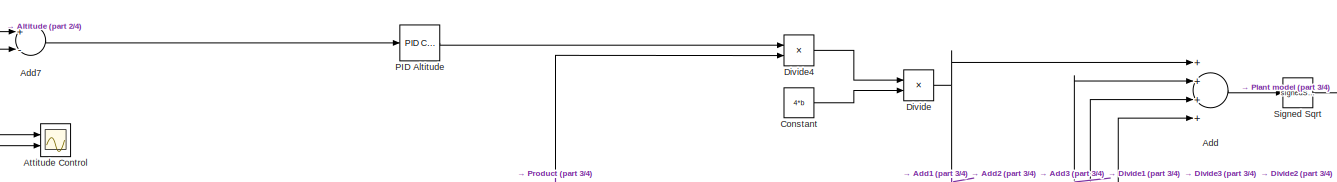
[diagram: root canvas - part 1/4, top center region]
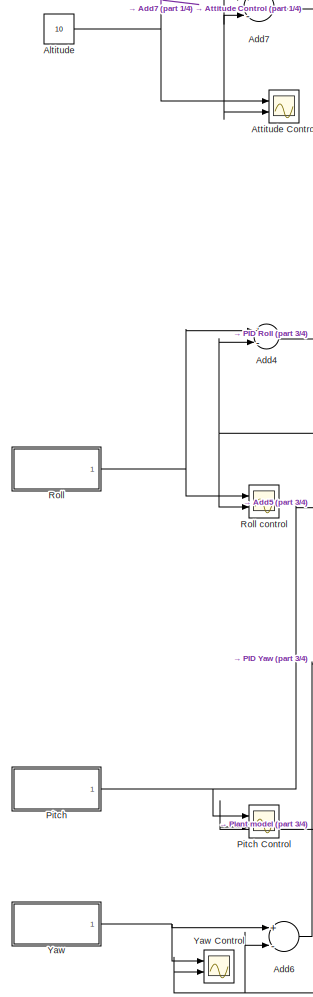
[diagram: root canvas - part 2/4, left side, full height]
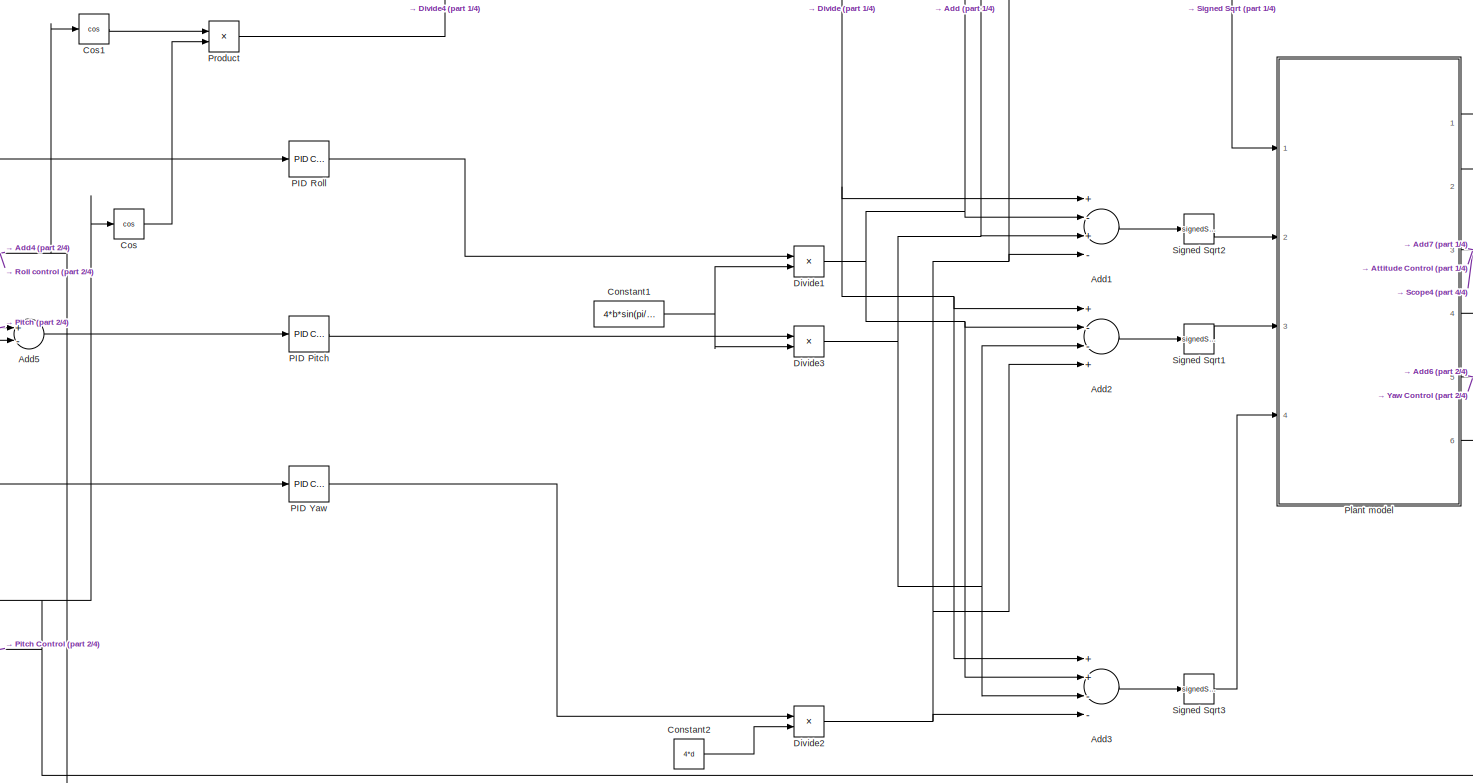
[diagram: root canvas - part 3/4, full width, middle band]
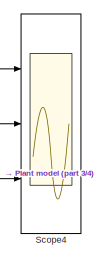
[diagram: root canvas - part 4/4, middle right region]
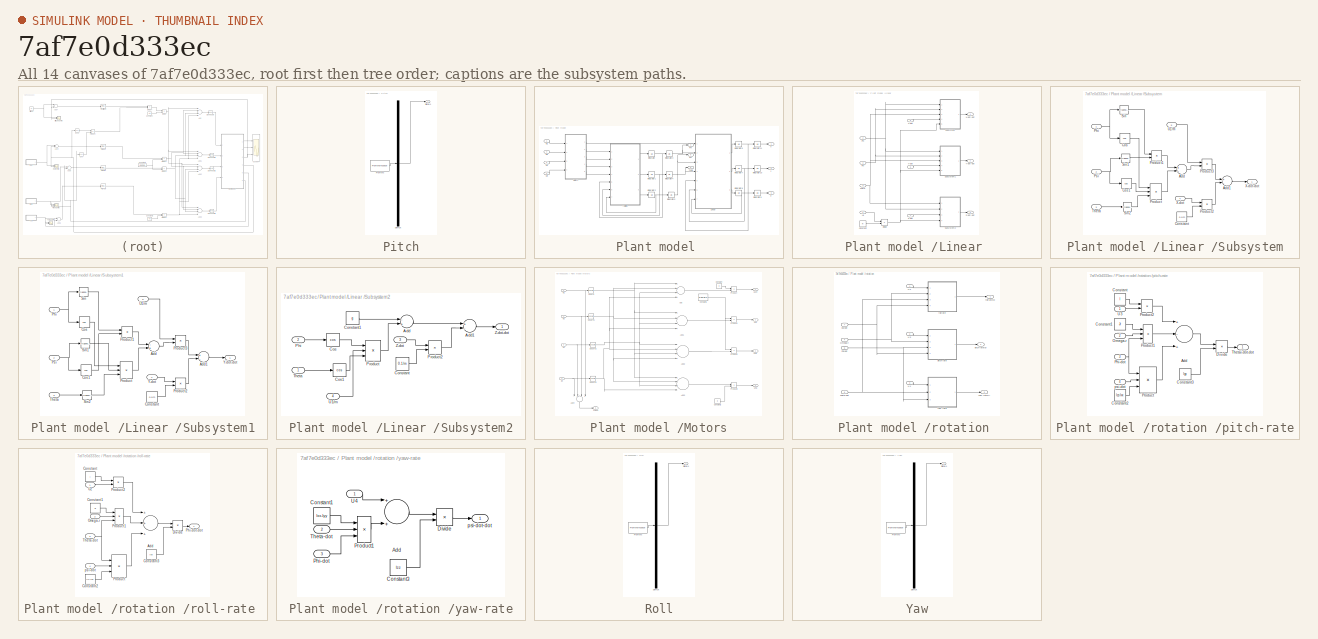
[diagram: thumbnail index - all 14 canvases of the model, root first then tree order]
MODEL slx_7af7e0d333ec
KIND model
CONFIG AbsTol = auto
CONFIG EnableMultiTasking = off
CONFIG FixedStep = auto
CONFIG MaxStep = auto
CONFIG MinStep = auto
CONFIG RelTol = 1e-3
CONFIG SampleTimeConstraint = Unconstrained
CONFIG Solver = VariableStepAuto
CONFIG SolverName = VariableStepAuto
CONFIG StartTime = 0.0
CONFIG StopTime = 200
BLOCK [Reference]  PID Altitude  REF=simulink/Continuous/PID Controller
  Ports = [1, 1]
  SourceBlock = simulink/Continuous/PID Controller
  SourceProductBaseCode = SL
  SourceProductName = Simulink
  SourceType = PID 1dof
BLOCK [Reference]  PID Pitch  REF=simulink/Continuous/PID Controller
  Ports = [1, 1]
  SourceBlock = simulink/Continuous/PID Controller
  SourceProductBaseCode = SL
  SourceProductName = Simulink
  SourceType = PID 1dof
BLOCK [Reference]  PID Roll  REF=simulink/Continuous/PID Controller
  Ports = [1, 1]
  SourceBlock = simulink/Continuous/PID Controller
  SourceProductBaseCode = SL
  SourceProductName = Simulink
  SourceType = PID 1dof
BLOCK [Reference]  PID Yaw  REF=simulink/Continuous/PID Controller
  Ports = [1, 1]
  SourceBlock = simulink/Continuous/PID Controller
  SourceProductBaseCode = SL
  SourceProductName = Simulink
  SourceType = PID 1dof
BLOCK [Sum] Add
  InputSameDT = off
  Inputs = ++++
  OutDataTypeStr = Inherit: Inherit via internal rule
  Ports = [4, 1]
  SaturateOnIntegerOverflow = off
BLOCK [Sum] Add1
  InputSameDT = off
  Inputs = +-+-
  OutDataTypeStr = Inherit: Inherit via internal rule
  Ports = [4, 1]
  SaturateOnIntegerOverflow = off
BLOCK [Sum] Add2
  InputSameDT = off
  Inputs = +--+
  OutDataTypeStr = Inherit: Inherit via internal rule
  Ports = [4, 1]
  SaturateOnIntegerOverflow = off
BLOCK [Sum] Add3
  InputSameDT = off
  Inputs = ++--
  OutDataTypeStr = Inherit: Inherit via internal rule
  Ports = [4, 1]
  SaturateOnIntegerOverflow = off
BLOCK [Sum] Add4
  InputSameDT = off
  Inputs = +-
  OutDataTypeStr = Inherit: Inherit via internal rule
  Ports = [2, 1]
  SaturateOnIntegerOverflow = off
BLOCK [Sum] Add5
  InputSameDT = off
  Inputs = +-
  OutDataTypeStr = Inherit: Inherit via internal rule
  Ports = [2, 1]
  SaturateOnIntegerOverflow = off
BLOCK [Sum] Add6
  InputSameDT = off
  Inputs = +-
  OutDataTypeStr = Inherit: Inherit via internal rule
  Ports = [2, 1]
  SaturateOnIntegerOverflow = off
BLOCK [Sum] Add7
  InputSameDT = off
  Inputs = +-
  OutDataTypeStr = Inherit: Inherit via internal rule
  Ports = [2, 1]
  SaturateOnIntegerOverflow = off
BLOCK [Constant] Altitude 
  Value = 10
BLOCK [Scope] Attitude Control 
  Floating = off
  NumInputPorts = 2
  Ports = [2]
  ScopeSpecificationString = Simulink.scopes.TimeScopeBlockCfg('CurrentConfiguration', extmgr.ConfigurationSet(extmgr.Configuration('Core','General UI',true,'FigureColor',[1 1 1]),extmgr.Configuration('Core','Source UI',true),extmgr.Configuration('Sources','WiredSimulink',true,'DataLoggingVariableName','ScopeData6'),extmgr.Configuration('Visuals','Time Domain',true,'SerializedDisplays',{struct('MinYLimReal','-1.43023','MaxYLi...<+2482ch>
BLOCK [Constant] Constant
  Value = 4*b
BLOCK [Constant] Constant1
  Value = 4*b*sin(pi/4)*l
BLOCK [Constant] Constant2
  Value = 4*d
BLOCK [Trigonometry] Cos
  Operator = cos
  Ports = [1, 1]
BLOCK [Trigonometry] Cos1
  Operator = cos
  Ports = [1, 1]
BLOCK [Product] Divide
  InputSameDT = off
  Inputs = */
  OutDataTypeStr = Inherit: Inherit via internal rule
  Ports = [2, 1]
  RndMeth = Floor
  SaturateOnIntegerOverflow = off
BLOCK [Product] Divide1
  InputSameDT = off
  Inputs = */
  OutDataTypeStr = Inherit: Inherit via internal rule
  Ports = [2, 1]
  RndMeth = Floor
  SaturateOnIntegerOverflow = off
BLOCK [Product] Divide2
  InputSameDT = off
  Inputs = */
  OutDataTypeStr = Inherit: Inherit via internal rule
  Ports = [2, 1]
  RndMeth = Floor
  SaturateOnIntegerOverflow = off
BLOCK [Product] Divide3
  InputSameDT = off
  Inputs = */
  OutDataTypeStr = Inherit: Inherit via internal rule
  Ports = [2, 1]
  RndMeth = Floor
  SaturateOnIntegerOverflow = off
BLOCK [Product] Divide4
  InputSameDT = off
  Inputs = */
  OutDataTypeStr = Inherit: Inherit via internal rule
  Ports = [2, 1]
  RndMeth = Floor
  SaturateOnIntegerOverflow = off
BLOCK [SubSystem] Pitch
  ClipboardFcn = sigbuilder_block('clipboard');
  CloseFcn = sigbuilder_block('close');
  ContinueFcn = sigbuilder_block('continue');
  CopyFcn = sigbuilder_block('copy');
  DeleteFcn = sigbuilder_block('delete');
  LoadFcn = sigbuilder_block('load');
  MaskHideContents = on
  ModelCloseFcn = sigbuilder_block('modelClose');
  NameChangeFcn = sigbuilder_block('namechange');
  OpenFcn = sigbuilder_block('open',[437.6 199.2 550.4 400 ]);
  PauseFcn = sigbuilder_block('pause');
  Ports = [0, 1]
  PreSaveFcn = sigbuilder_block('preSave');
  RequestExecContextInheritance = off
  StartFcn = sigbuilder_block('start');
  StopFcn = sigbuilder_block('stop');
  Tag = STV Subsys
BLOCK [Scope] Pitch Control
  Floating = off
  NumInputPorts = 2
  Ports = [2]
  ScopeSpecificationString = Simulink.scopes.TimeScopeBlockCfg('CurrentConfiguration', extmgr.ConfigurationSet(extmgr.Configuration('Core','General UI',true,'FigureColor',[1 1 1]),extmgr.Configuration('Core','Source UI',true),extmgr.Configuration('Sources','WiredSimulink',true,'DataLoggingVariableName','ScopeData2'),extmgr.Configuration('Visuals','Time Domain',true,'SerializedDisplays',{struct('MinYLimReal','-0.025','MaxYLimR...<+2359ch>
BLOCK [Demux] Pitch/Demux
  Outputs = 1
  Ports = [1, 1]
  Tag = STV Demux
BLOCK [FromWorkspace] Pitch/FromWs
  SampleTime = 0
  Tag = STV FromWs
  VariableName = tuvar
  ZeroCross = on
BLOCK [Outport] Pitch/Signal 1
  IconDisplay = Port number
  Tag = STV Outport
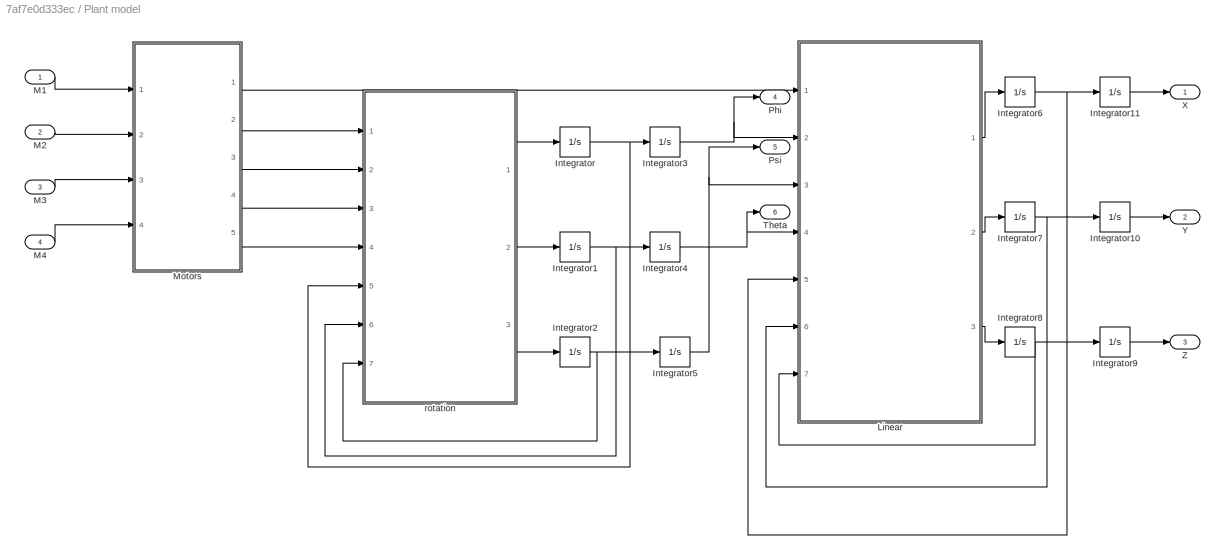
BLOCK [SubSystem] Plant model 
  Ports = [4, 6]
  RequestExecContextInheritance = off
BLOCK [Integrator] Plant model /Integrator
  Ports = [1, 1]
BLOCK [Integrator] Plant model /Integrator1
  Ports = [1, 1]
BLOCK [Integrator] Plant model /Integrator10
  LimitOutput = on
  Ports = [1, 1]
BLOCK [Integrator] Plant model /Integrator11
  LimitOutput = on
  Ports = [1, 1]
BLOCK [Integrator] Plant model /Integrator2
  Ports = [1, 1]
BLOCK [Integrator] Plant model /Integrator3
  Ports = [1, 1]
  WrapState = on
BLOCK [Integrator] Plant model /Integrator4
  Ports = [1, 1]
  WrapState = on
BLOCK [Integrator] Plant model /Integrator5
  Ports = [1, 1]
  WrapState = on
BLOCK [Integrator] Plant model /Integrator6
  Ports = [1, 1]
BLOCK [Integrator] Plant model /Integrator7
  Ports = [1, 1]
BLOCK [Integrator] Plant model /Integrator8
  Ports = [1, 1]
BLOCK [Integrator] Plant model /Integrator9
  LimitOutput = on
  Ports = [1, 1]
BLOCK [SubSystem] Plant model /Linear 
  Ports = [7, 3]
  RequestExecContextInheritance = off
BLOCK [Constant] Plant model /Linear /Constant
  Value = m
BLOCK [Product] Plant model /Linear /Divide
  InputSameDT = off
  Inputs = */
  OutDataTypeStr = Inherit: Inherit via internal rule
  Ports = [2, 1]
  RndMeth = Floor
  SaturateOnIntegerOverflow = off
BLOCK [Inport] Plant model /Linear /Phi
  IconDisplay = Port number
  Port = 2
BLOCK [Inport] Plant model /Linear /Psi 
  IconDisplay = Port number
  Port = 3
BLOCK [SubSystem] Plant model /Linear /Subsystem
  Ports = [5, 1]
  RequestExecContextInheritance = off
BLOCK [Sum] Plant model /Linear /Subsystem/Add
  InputSameDT = off
  Inputs = +-
  OutDataTypeStr = Inherit: Inherit via internal rule
  Ports = [2, 1]
  SaturateOnIntegerOverflow = off
BLOCK [Sum] Plant model /Linear /Subsystem/Add1
  InputSameDT = off
  Inputs = +-
  OutDataTypeStr = Inherit: Inherit via internal rule
  Ports = [2, 1]
  SaturateOnIntegerOverflow = off
BLOCK [Constant] Plant model /Linear /Subsystem/Constant
  Value = 0.1/m
BLOCK [Trigonometry] Plant model /Linear /Subsystem/Cos
  Operator = cos
  Ports = [1, 1]
BLOCK [Trigonometry] Plant model /Linear /Subsystem/Cos1
  Operator = cos
  Ports = [1, 1]
BLOCK [Inport] Plant model /Linear /Subsystem/Phi
  IconDisplay = Port number
BLOCK [Product] Plant model /Linear /Subsystem/Product
  InputSameDT = off
  Inputs = 3
  OutDataTypeStr = Inherit: Inherit via internal rule
  Ports = [3, 1]
  RndMeth = Floor
  SaturateOnIntegerOverflow = off
BLOCK [Product] Plant model /Linear /Subsystem/Product1
  InputSameDT = off
  OutDataTypeStr = Inherit: Inherit via internal rule
  Ports = [2, 1]
  RndMeth = Floor
  SaturateOnIntegerOverflow = off
BLOCK [Product] Plant model /Linear /Subsystem/Product2
  InputSameDT = off
  OutDataTypeStr = Inherit: Inherit via internal rule
  Ports = [2, 1]
  RndMeth = Floor
  SaturateOnIntegerOverflow = off
BLOCK [Product] Plant model /Linear /Subsystem/Product3
  InputSameDT = off
  OutDataTypeStr = Inherit: Inherit via internal rule
  Ports = [2, 1]
  RndMeth = Floor
  SaturateOnIntegerOverflow = off
BLOCK [Inport] Plant model /Linear /Subsystem/Psi 
  IconDisplay = Port number
  Port = 2
BLOCK [Trigonometry] Plant model /Linear /Subsystem/Sin
  Ports = [1, 1]
BLOCK [Trigonometry] Plant model /Linear /Subsystem/Sin1
  Ports = [1, 1]
BLOCK [Trigonometry] Plant model /Linear /Subsystem/Sin2
  Ports = [1, 1]
BLOCK [Inport] Plant model /Linear /Subsystem/Theta
  IconDisplay = Port number
  Port = 3
BLOCK [Inport] Plant model /Linear /Subsystem/U1//m
  IconDisplay = Port number
  Port = 5
BLOCK [Inport] Plant model /Linear /Subsystem/X-dot 
  IconDisplay = Port number
  Port = 4
BLOCK [Outport] Plant model /Linear /Subsystem/X-dot-dot
  IconDisplay = Port number
BLOCK [SubSystem] Plant model /Linear /Subsystem1
  Ports = [5, 1]
  RequestExecContextInheritance = off
BLOCK [Sum] Plant model /Linear /Subsystem1/Add
  InputSameDT = off
  Inputs = -+
  OutDataTypeStr = Inherit: Inherit via internal rule
  Ports = [2, 1]
  SaturateOnIntegerOverflow = off
BLOCK [Sum] Plant model /Linear /Subsystem1/Add1
  InputSameDT = off
  Inputs = +-
  OutDataTypeStr = Inherit: Inherit via internal rule
  Ports = [2, 1]
  SaturateOnIntegerOverflow = off
BLOCK [Constant] Plant model /Linear /Subsystem1/Constant
  Value = 0.1/m
BLOCK [Trigonometry] Plant model /Linear /Subsystem1/Cos
  Operator = cos
  Ports = [1, 1]
BLOCK [Trigonometry] Plant model /Linear /Subsystem1/Cos1
  Operator = cos
  Ports = [1, 1]
BLOCK [Inport] Plant model /Linear /Subsystem1/Phi
  IconDisplay = Port number
BLOCK [Product] Plant model /Linear /Subsystem1/Product
  InputSameDT = off
  Inputs = 3
  OutDataTypeStr = Inherit: Inherit via internal rule
  Ports = [3, 1]
  RndMeth = Floor
  SaturateOnIntegerOverflow = off
BLOCK [Product] Plant model /Linear /Subsystem1/Product1
  InputSameDT = off
  OutDataTypeStr = Inherit: Inherit via internal rule
  Ports = [2, 1]
  RndMeth = Floor
  SaturateOnIntegerOverflow = off
BLOCK [Product] Plant model /Linear /Subsystem1/Product2
  InputSameDT = off
  OutDataTypeStr = Inherit: Inherit via internal rule
  Ports = [2, 1]
  RndMeth = Floor
  SaturateOnIntegerOverflow = off
BLOCK [Product] Plant model /Linear /Subsystem1/Product3
  InputSameDT = off
  OutDataTypeStr = Inherit: Inherit via internal rule
  Ports = [2, 1]
  RndMeth = Floor
  SaturateOnIntegerOverflow = off
BLOCK [Inport] Plant model /Linear /Subsystem1/Psi 
  IconDisplay = Port number
  Port = 2
BLOCK [Trigonometry] Plant model /Linear /Subsystem1/Sin
  Ports = [1, 1]
BLOCK [Trigonometry] Plant model /Linear /Subsystem1/Sin1
  Ports = [1, 1]
BLOCK [Trigonometry] Plant model /Linear /Subsystem1/Sin2
  Ports = [1, 1]
BLOCK [Inport] Plant model /Linear /Subsystem1/Theta
  IconDisplay = Port number
  Port = 3
BLOCK [Inport] Plant model /Linear /Subsystem1/U1//m
  IconDisplay = Port number
  Port = 5
BLOCK [Inport] Plant model /Linear /Subsystem1/Y-dot 
  IconDisplay = Port number
  Port = 4
BLOCK [Outport] Plant model /Linear /Subsystem1/Y-dot-dot
  IconDisplay = Port number
BLOCK [SubSystem] Plant model /Linear /Subsystem2
  Ports = [4, 1]
  RequestExecContextInheritance = off
BLOCK [Sum] Plant model /Linear /Subsystem2/Add
  InputSameDT = off
  Inputs = -+
  OutDataTypeStr = Inherit: Inherit via internal rule
  Ports = [2, 1]
  SaturateOnIntegerOverflow = off
BLOCK [Sum] Plant model /Linear /Subsystem2/Add1
  InputSameDT = off
  Inputs = +-
  OutDataTypeStr = Inherit: Inherit via internal rule
  Ports = [2, 1]
  SaturateOnIntegerOverflow = off
BLOCK [Constant] Plant model /Linear /Subsystem2/Constant
  Value = 0.1/m
BLOCK [Constant] Plant model /Linear /Subsystem2/Constant1
  Value = g
BLOCK [Trigonometry] Plant model /Linear /Subsystem2/Cos
  Operator = cos
  Ports = [1, 1]
BLOCK [Trigonometry] Plant model /Linear /Subsystem2/Cos1
  Operator = cos
  Ports = [1, 1]
BLOCK [Inport] Plant model /Linear /Subsystem2/Phi
  IconDisplay = Port number
  Port = 2
BLOCK [Product] Plant model /Linear /Subsystem2/Product
  InputSameDT = off
  Inputs = 3
  OutDataTypeStr = Inherit: Inherit via internal rule
  Ports = [3, 1]
  RndMeth = Floor
  SaturateOnIntegerOverflow = off
BLOCK [Product] Plant model /Linear /Subsystem2/Product2
  InputSameDT = off
  OutDataTypeStr = Inherit: Inherit via internal rule
  Ports = [2, 1]
  RndMeth = Floor
  SaturateOnIntegerOverflow = off
BLOCK [Inport] Plant model /Linear /Subsystem2/Theta
  IconDisplay = Port number
BLOCK [Inport] Plant model /Linear /Subsystem2/U1//m
  IconDisplay = Port number
  Port = 4
BLOCK [Inport] Plant model /Linear /Subsystem2/Z-dot 
  IconDisplay = Port number
  Port = 3
BLOCK [Outport] Plant model /Linear /Subsystem2/Z-dot-dot
  IconDisplay = Port number
BLOCK [Inport] Plant model /Linear /Theta
  IconDisplay = Port number
  Port = 4
BLOCK [Inport] Plant model /Linear /U1
  IconDisplay = Port number
BLOCK [Inport] Plant model /Linear /X-dot 
  IconDisplay = Port number
  Port = 5
BLOCK [Outport] Plant model /Linear /X-dot-dot
  IconDisplay = Port number
BLOCK [Inport] Plant model /Linear /Y-dot
  IconDisplay = Port number
  Port = 6
BLOCK [Outport] Plant model /Linear /Y-dot-dot
  IconDisplay = Port number
  Port = 2
BLOCK [Inport] Plant model /Linear /Z-dot 
  IconDisplay = Port number
  Port = 7
BLOCK [Outport] Plant model /Linear /Z-dot-dot
  IconDisplay = Port number
  Port = 3
BLOCK [Inport] Plant model /M1
  IconDisplay = Port number
BLOCK [Inport] Plant model /M2
  IconDisplay = Port number
  Port = 2
BLOCK [Inport] Plant model /M3
  IconDisplay = Port number
  Port = 3
BLOCK [Inport] Plant model /M4
  IconDisplay = Port number
  Port = 4
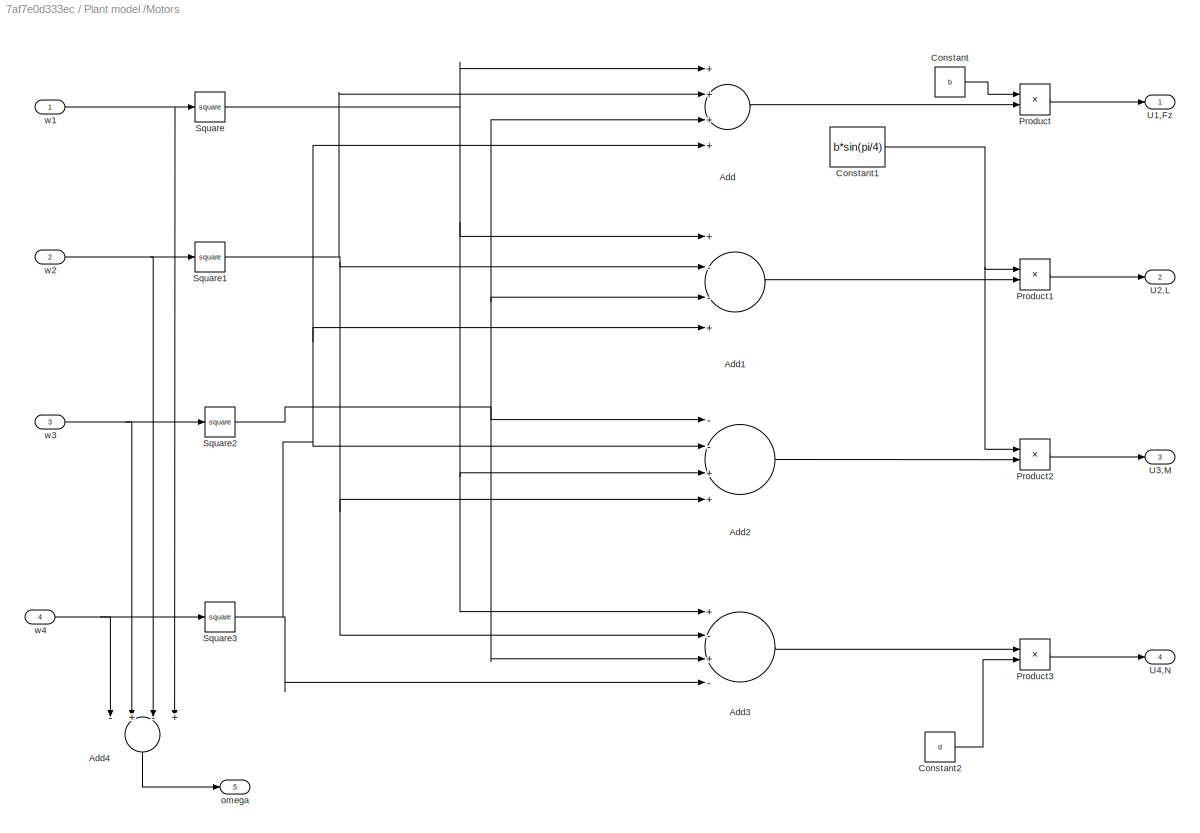
BLOCK [SubSystem] Plant model /Motors
  Ports = [4, 5]
  RequestExecContextInheritance = off
BLOCK [Sum] Plant model /Motors/Add
  InputSameDT = off
  Inputs = ++++
  OutDataTypeStr = Inherit: Inherit via internal rule
  Ports = [4, 1]
  SaturateOnIntegerOverflow = off
BLOCK [Sum] Plant model /Motors/Add1
  InputSameDT = off
  Inputs = +--+
  OutDataTypeStr = Inherit: Inherit via internal rule
  Ports = [4, 1]
  SaturateOnIntegerOverflow = off
BLOCK [Sum] Plant model /Motors/Add2
  InputSameDT = off
  Inputs = --++
  OutDataTypeStr = Inherit: Inherit via internal rule
  Ports = [4, 1]
  SaturateOnIntegerOverflow = off
BLOCK [Sum] Plant model /Motors/Add3
  InputSameDT = off
  Inputs = +-+-
  OutDataTypeStr = Inherit: Inherit via internal rule
  Ports = [4, 1]
  SaturateOnIntegerOverflow = off
BLOCK [Sum] Plant model /Motors/Add4
  InputSameDT = off
  Inputs = -+-+
  OutDataTypeStr = Inherit: Inherit via internal rule
  Ports = [4, 1]
  SaturateOnIntegerOverflow = off
BLOCK [Constant] Plant model /Motors/Constant
  Value = b
BLOCK [Constant] Plant model /Motors/Constant1
  Value = b*sin(pi/4)
BLOCK [Constant] Plant model /Motors/Constant2
  Value = d
BLOCK [Product] Plant model /Motors/Product
  InputSameDT = off
  OutDataTypeStr = Inherit: Inherit via internal rule
  Ports = [2, 1]
  RndMeth = Floor
  SaturateOnIntegerOverflow = off
BLOCK [Product] Plant model /Motors/Product1
  InputSameDT = off
  OutDataTypeStr = Inherit: Inherit via internal rule
  Ports = [2, 1]
  RndMeth = Floor
  SaturateOnIntegerOverflow = off
BLOCK [Product] Plant model /Motors/Product2
  InputSameDT = off
  OutDataTypeStr = Inherit: Inherit via internal rule
  Ports = [2, 1]
  RndMeth = Floor
  SaturateOnIntegerOverflow = off
BLOCK [Product] Plant model /Motors/Product3
  InputSameDT = off
  OutDataTypeStr = Inherit: Inherit via internal rule
  Ports = [2, 1]
  RndMeth = Floor
  SaturateOnIntegerOverflow = off
BLOCK [Math] Plant model /Motors/Square
  Operator = square
  Ports = [1, 1]
  SignedPower = off
BLOCK [Math] Plant model /Motors/Square1
  Operator = square
  Ports = [1, 1]
  SignedPower = off
BLOCK [Math] Plant model /Motors/Square2
  Operator = square
  Ports = [1, 1]
  SignedPower = off
BLOCK [Math] Plant model /Motors/Square3
  Operator = square
  Ports = [1, 1]
  SignedPower = off
BLOCK [Outport] Plant model /Motors/U1,Fz 
  IconDisplay = Port number
BLOCK [Outport] Plant model /Motors/U2,L
  IconDisplay = Port number
  Port = 2
BLOCK [Outport] Plant model /Motors/U3,M 
  IconDisplay = Port number
  Port = 3
BLOCK [Outport] Plant model /Motors/U4,N
  IconDisplay = Port number
  Port = 4
BLOCK [Outport] Plant model /Motors/omega 
  IconDisplay = Port number
  Port = 5
BLOCK [Inport] Plant model /Motors/w1
  IconDisplay = Port number
BLOCK [Inport] Plant model /Motors/w2
  IconDisplay = Port number
  Port = 2
BLOCK [Inport] Plant model /Motors/w3
  IconDisplay = Port number
  Port = 3
BLOCK [Inport] Plant model /Motors/w4
  IconDisplay = Port number
  Port = 4
BLOCK [Outport] Plant model /Phi
  IconDisplay = Port number
  Port = 4
BLOCK [Outport] Plant model /Psi 
  IconDisplay = Port number
  Port = 5
BLOCK [Outport] Plant model /Theta
  IconDisplay = Port number
  Port = 6
BLOCK [Outport] Plant model /X
  IconDisplay = Port number
BLOCK [Outport] Plant model /Y
  IconDisplay = Port number
  Port = 2
BLOCK [Outport] Plant model /Z
  IconDisplay = Port number
  Port = 3
BLOCK [SubSystem] Plant model /rotation 
  Ports = [7, 3]
  RequestExecContextInheritance = off
BLOCK [Inport] Plant model /rotation /Omega-r 
  IconDisplay = Port number
  Port = 4
BLOCK [Inport] Plant model /rotation /Phi-dot 
  IconDisplay = Port number
  Port = 5
BLOCK [Inport] Plant model /rotation /Theta-dot 
  IconDisplay = Port number
  Port = 6
BLOCK [Inport] Plant model /rotation /U2
  IconDisplay = Port number
BLOCK [Inport] Plant model /rotation /U3
  IconDisplay = Port number
  Port = 2
BLOCK [Inport] Plant model /rotation /U4
  IconDisplay = Port number
  Port = 3
BLOCK [SubSystem] Plant model /rotation /pitch-rate
  Ports = [4, 1]
  RequestExecContextInheritance = off
BLOCK [Outport] Plant model /rotation /pitch-rate(q)
  IconDisplay = Port number
  Port = 2
BLOCK [Sum] Plant model /rotation /pitch-rate/Add
  InputSameDT = off
  Inputs = +-+
  OutDataTypeStr = Inherit: Inherit via internal rule
  Ports = [3, 1]
  SaturateOnIntegerOverflow = off
BLOCK [Constant] Plant model /rotation /pitch-rate/Constant
  Value = l
BLOCK [Constant] Plant model /rotation /pitch-rate/Constant1
  Value = Jr
BLOCK [Constant] Plant model /rotation /pitch-rate/Constant2
  Value = Izz-Ixx
BLOCK [Constant] Plant model /rotation /pitch-rate/Constant3
  Value = Iyy
BLOCK [Product] Plant model /rotation /pitch-rate/Divide
  InputSameDT = off
  Inputs = */
  OutDataTypeStr = Inherit: Inherit via internal rule
  Ports = [2, 1]
  RndMeth = Floor
  SaturateOnIntegerOverflow = off
BLOCK [Inport] Plant model /rotation /pitch-rate/Omega-r 
  IconDisplay = Port number
  Port = 2
BLOCK [Inport] Plant model /rotation /pitch-rate/Phi-dot 
  IconDisplay = Port number
  Port = 3
BLOCK [Product] Plant model /rotation /pitch-rate/Product
  InputSameDT = off
  Inputs = 3
  OutDataTypeStr = Inherit: Inherit via internal rule
  Ports = [3, 1]
  RndMeth = Floor
  SaturateOnIntegerOverflow = off
BLOCK [Product] Plant model /rotation /pitch-rate/Product1
  InputSameDT = off
  Inputs = 3
  OutDataTypeStr = Inherit: Inherit via internal rule
  Ports = [3, 1]
  RndMeth = Floor
  SaturateOnIntegerOverflow = off
BLOCK [Product] Plant model /rotation /pitch-rate/Product2
  InputSameDT = off
  OutDataTypeStr = Inherit: Inherit via internal rule
  Ports = [2, 1]
  RndMeth = Floor
  SaturateOnIntegerOverflow = off
BLOCK [Outport] Plant model /rotation /pitch-rate/Thetai-dot-dot
  IconDisplay = Port number
BLOCK [Inport] Plant model /rotation /pitch-rate/U3
  IconDisplay = Port number
BLOCK [Inport] Plant model /rotation /pitch-rate/psi-dot 
  IconDisplay = Port number
  Port = 4
BLOCK [Inport] Plant model /rotation /psi-dot 
  IconDisplay = Port number
  Port = 7
BLOCK [SubSystem] Plant model /rotation /roll-rate 
  Ports = [4, 1]
  RequestExecContextInheritance = off
BLOCK [Sum] Plant model /rotation /roll-rate /Add
  InputSameDT = off
  Inputs = +++
  OutDataTypeStr = Inherit: Inherit via internal rule
  Ports = [3, 1]
  SaturateOnIntegerOverflow = off
BLOCK [Constant] Plant model /rotation /roll-rate /Constant
  Value = l
BLOCK [Constant] Plant model /rotation /roll-rate /Constant1
  Value = Jr
BLOCK [Constant] Plant model /rotation /roll-rate /Constant2
  Value = Iyy-Izz
BLOCK [Constant] Plant model /rotation /roll-rate /Constant3
  Value = Ixx
BLOCK [Product] Plant model /rotation /roll-rate /Divide
  InputSameDT = off
  Inputs = */
  OutDataTypeStr = Inherit: Inherit via internal rule
  Ports = [2, 1]
  RndMeth = Floor
  SaturateOnIntegerOverflow = off
BLOCK [Inport] Plant model /rotation /roll-rate /Omega-r 
  IconDisplay = Port number
  Port = 2
BLOCK [Outport] Plant model /rotation /roll-rate /Phi-dot-dot
  IconDisplay = Port number
BLOCK [Product] Plant model /rotation /roll-rate /Product
  InputSameDT = off
  Inputs = 3
  OutDataTypeStr = Inherit: Inherit via internal rule
  Ports = [3, 1]
  RndMeth = Floor
  SaturateOnIntegerOverflow = off
BLOCK [Product] Plant model /rotation /roll-rate /Product1
  InputSameDT = off
  Inputs = 3
  OutDataTypeStr = Inherit: Inherit via internal rule
  Ports = [3, 1]
  RndMeth = Floor
  SaturateOnIntegerOverflow = off
BLOCK [Product] Plant model /rotation /roll-rate /Product2
  InputSameDT = off
  OutDataTypeStr = Inherit: Inherit via internal rule
  Ports = [2, 1]
  RndMeth = Floor
  SaturateOnIntegerOverflow = off
BLOCK [Inport] Plant model /rotation /roll-rate /Theta-dot 
  IconDisplay = Port number
  Port = 3
BLOCK [Inport] Plant model /rotation /roll-rate /U2
  IconDisplay = Port number
BLOCK [Inport] Plant model /rotation /roll-rate /psi-dot 
  IconDisplay = Port number
  Port = 4
BLOCK [Outport] Plant model /rotation /roll-rate(p)
  IconDisplay = Port number
BLOCK [SubSystem] Plant model /rotation /yaw-rate
  Ports = [3, 1]
  RequestExecContextInheritance = off
BLOCK [Outport] Plant model /rotation /yaw-rate(r)
  IconDisplay = Port number
  Port = 3
BLOCK [Sum] Plant model /rotation /yaw-rate/Add
  InputSameDT = off
  OutDataTypeStr = Inherit: Inherit via internal rule
  Ports = [2, 1]
  SaturateOnIntegerOverflow = off
BLOCK [Constant] Plant model /rotation /yaw-rate/Constant1
  Value = Ixx-Iyy
BLOCK [Constant] Plant model /rotation /yaw-rate/Constant3
  Value = Izz
BLOCK [Product] Plant model /rotation /yaw-rate/Divide
  InputSameDT = off
  Inputs = */
  OutDataTypeStr = Inherit: Inherit via internal rule
  Ports = [2, 1]
  RndMeth = Floor
  SaturateOnIntegerOverflow = off
BLOCK [Inport] Plant model /rotation /yaw-rate/Phi-dot 
  IconDisplay = Port number
  Port = 3
BLOCK [Product] Plant model /rotation /yaw-rate/Product1
  InputSameDT = off
  Inputs = 3
  OutDataTypeStr = Inherit: Inherit via internal rule
  Ports = [3, 1]
  RndMeth = Floor
  SaturateOnIntegerOverflow = off
BLOCK [Inport] Plant model /rotation /yaw-rate/Theta-dot 
  IconDisplay = Port number
  Port = 2
BLOCK [Inport] Plant model /rotation /yaw-rate/U4
  IconDisplay = Port number
BLOCK [Outport] Plant model /rotation /yaw-rate/psi-dot-dot
  IconDisplay = Port number
BLOCK [Product] Product
  InputSameDT = off
  OutDataTypeStr = Inherit: Inherit via internal rule
  Ports = [2, 1]
  RndMeth = Floor
  SaturateOnIntegerOverflow = off
BLOCK [SubSystem] Roll
  ClipboardFcn = sigbuilder_block('clipboard');
  CloseFcn = sigbuilder_block('close');
  ContinueFcn = sigbuilder_block('continue');
  CopyFcn = sigbuilder_block('copy');
  DeleteFcn = sigbuilder_block('delete');
  LoadFcn = sigbuilder_block('load');
  MaskHideContents = on
  ModelCloseFcn = sigbuilder_block('modelClose');
  NameChangeFcn = sigbuilder_block('namechange');
  OpenFcn = sigbuilder_block('open',[437.6 199.2 550.4 400 ]);
  PauseFcn = sigbuilder_block('pause');
  Ports = [0, 1]
  PreSaveFcn = sigbuilder_block('preSave');
  RequestExecContextInheritance = off
  StartFcn = sigbuilder_block('start');
  StopFcn = sigbuilder_block('stop');
  Tag = STV Subsys
BLOCK [Scope] Roll control
  Floating = off
  NumInputPorts = 2
  Ports = [2]
  ScopeSpecificationString = Simulink.scopes.TimeScopeBlockCfg('CurrentConfiguration', extmgr.ConfigurationSet(extmgr.Configuration('Core','General UI',true,'FigureColor',[1 1 1]),extmgr.Configuration('Core','Source UI',true),extmgr.Configuration('Sources','WiredSimulink',true,'DataLoggingVariableName','ScopeData1'),extmgr.Configuration('Visuals','Time Domain',true,'SerializedDisplays',{struct('MinYLimReal','-0.025','MaxYLimR...<+2356ch>
BLOCK [Demux] Roll/Demux
  Outputs = 1
  Ports = [1, 1]
  Tag = STV Demux
BLOCK [FromWorkspace] Roll/FromWs
  SampleTime = 0
  Tag = STV FromWs
  VariableName = tuvar
  ZeroCross = on
BLOCK [Outport] Roll/Signal 1
  IconDisplay = Port number
  Tag = STV Outport
BLOCK [Scope] Scope4
  Floating = off
  NumInputPorts = 3
  Ports = [3]
  ScopeSpecificationString = Simulink.scopes.TimeScopeBlockCfg('CurrentConfiguration', extmgr.ConfigurationSet(extmgr.Configuration('Core','General UI',true),extmgr.Configuration('Core','Source UI',true),extmgr.Configuration('Sources','WiredSimulink',true,'DataLoggingVariableName','ScopeData7'),extmgr.Configuration('Visuals','Time Domain',true,'SerializedDisplays',{struct('MinYLimReal','-9478518614.47893','MaxYLimReal','45065...<+2942ch>
BLOCK [Sqrt] Signed Sqrt
  Operator = signedSqrt
BLOCK [Sqrt] Signed Sqrt1
  Operator = signedSqrt
BLOCK [Sqrt] Signed Sqrt2
  Operator = signedSqrt
BLOCK [Sqrt] Signed Sqrt3
  Operator = signedSqrt
BLOCK [SubSystem] Yaw
  ClipboardFcn = sigbuilder_block('clipboard');
  CloseFcn = sigbuilder_block('close');
  ContinueFcn = sigbuilder_block('continue');
  CopyFcn = sigbuilder_block('copy');
  DeleteFcn = sigbuilder_block('delete');
  LoadFcn = sigbuilder_block('load');
  MaskHideContents = on
  ModelCloseFcn = sigbuilder_block('modelClose');
  NameChangeFcn = sigbuilder_block('namechange');
  OpenFcn = sigbuilder_block('open',[437.6 199.2 550.4 400 ]);
  PauseFcn = sigbuilder_block('pause');
  Ports = [0, 1]
  PreSaveFcn = sigbuilder_block('preSave');
  RequestExecContextInheritance = off
  StartFcn = sigbuilder_block('start');
  StopFcn = sigbuilder_block('stop');
  Tag = STV Subsys
BLOCK [Scope] Yaw Control
  Floating = off
  NumInputPorts = 2
  Ports = [2]
  ScopeSpecificationString = Simulink.scopes.TimeScopeBlockCfg('CurrentConfiguration', extmgr.ConfigurationSet(extmgr.Configuration('Core','General UI',true,'FigureColor',[1 1 1]),extmgr.Configuration('Core','Source UI',true),extmgr.Configuration('Sources','WiredSimulink',true,'DataLoggingVariableName','ScopeData3'),extmgr.Configuration('Visuals','Time Domain',true,'SerializedDisplays',{struct('MinYLimReal','-0.025','MaxYLimR...<+2353ch>
BLOCK [Demux] Yaw/Demux
  Outputs = 1
  Ports = [1, 1]
  Tag = STV Demux
BLOCK [FromWorkspace] Yaw/FromWs
  SampleTime = 0
  Tag = STV FromWs
  VariableName = tuvar
  ZeroCross = on
BLOCK [Outport] Yaw/Signal 1
  IconDisplay = Port number
  Tag = STV Outport
LINE  PID Altitude:1 -> Divide4:1
LINE  PID Pitch:1 -> Divide3:1
LINE  PID Roll:1 -> Divide1:1
LINE  PID Yaw:1 -> Divide2:1
LINE Add1:1 -> Signed Sqrt2:1
LINE Add2:1 -> Signed Sqrt1:1
LINE Add3:1 -> Signed Sqrt3:1
LINE Add4:1 ->  PID Roll:1
LINE Add5:1 ->  PID Pitch:1
LINE Add6:1 ->  PID Yaw:1
LINE Add7:1 ->  PID Altitude:1
LINE Add:1 -> Signed Sqrt:1
NET Altitude :1 -> Add7:1, Attitude Control :1
NET Constant1:1 -> Divide1:2, Divide3:2
LINE Constant2:1 -> Divide2:2
LINE Constant:1 -> Divide:2
LINE Cos1:1 -> Product:1
LINE Cos:1 -> Product:2
NET Divide1:1 -> Add1:2, Add2:2, Add3:2, Add:2
NET Divide2:1 -> Add1:4, Add2:4, Add3:4, Add:4
NET Divide3:1 -> Add1:3, Add2:3, Add3:3, Add:3
LINE Divide4:1 -> Divide:1
NET Divide:1 -> Add1:1, Add2:1, Add3:1, Add:1
NET Pitch:1 -> Add5:1, Pitch Control:1
LINE Plant model /Integrator10:1 -> Plant model /Y:1
LINE Plant model /Integrator11:1 -> Plant model /X:1
NET Plant model /Integrator1:1 -> Plant model /Integrator4:1, Plant model /rotation :6
NET Plant model /Integrator2:1 -> Plant model /Integrator5:1, Plant model /rotation :7
NET Plant model /Integrator3:1 -> Plant model /Linear :2, Plant model /Phi:1
NET Plant model /Integrator4:1 -> Plant model /Linear :4, Plant model /Theta:1
NET Plant model /Integrator5:1 -> Plant model /Linear :3, Plant model /Psi :1
NET Plant model /Integrator6:1 -> Plant model /Integrator11:1, Plant model /Linear :5
NET Plant model /Integrator7:1 -> Plant model /Integrator10:1, Plant model /Linear :6
NET Plant model /Integrator8:1 -> Plant model /Integrator9:1, Plant model /Linear :7
LINE Plant model /Integrator9:1 -> Plant model /Z:1
NET Plant model /Integrator:1 -> Plant model /Integrator3:1, Plant model /rotation :5
LINE Plant model /Linear /Constant:1 -> Plant model /Linear /Divide:2
NET Plant model /Linear /Divide:1 -> Plant model /Linear /Subsystem1:5, Plant model /Linear /Subsystem2:4, Plant model /Linear /Subsystem:5
NET Plant model /Linear /Phi:1 -> Plant model /Linear /Subsystem1:1, Plant model /Linear /Subsystem2:2, Plant model /Linear /Subsystem:1
NET Plant model /Linear /Psi :1 -> Plant model /Linear /Subsystem1:2, Plant model /Linear /Subsystem:2
LINE Plant model /Linear /Subsystem/Add1:1 -> Plant model /Linear /Subsystem/X-dot-dot:1
LINE Plant model /Linear /Subsystem/Add:1 -> Plant model /Linear /Subsystem/Product3:2
LINE Plant model /Linear /Subsystem/Constant:1 -> Plant model /Linear /Subsystem/Product2:2
LINE Plant model /Linear /Subsystem/Cos1:1 -> Plant model /Linear /Subsystem/Product:2
LINE Plant model /Linear /Subsystem/Cos:1 -> Plant model /Linear /Subsystem/Product:1
NET Plant model /Linear /Subsystem/Phi:1 -> Plant model /Linear /Subsystem/Cos:1, Plant model /Linear /Subsystem/Sin:1
LINE Plant model /Linear /Subsystem/Product1:1 -> Plant model /Linear /Subsystem/Add:1
LINE Plant model /Linear /Subsystem/Product2:1 -> Plant model /Linear /Subsystem/Add1:2
LINE Plant model /Linear /Subsystem/Product3:1 -> Plant model /Linear /Subsystem/Add1:1
LINE Plant model /Linear /Subsystem/Product:1 -> Plant model /Linear /Subsystem/Add:2
NET Plant model /Linear /Subsystem/Psi :1 -> Plant model /Linear /Subsystem/Cos1:1, Plant model /Linear /Subsystem/Sin1:1
LINE Plant model /Linear /Subsystem/Sin1:1 -> Plant model /Linear /Subsystem/Product1:2
LINE Plant model /Linear /Subsystem/Sin2:1 -> Plant model /Linear /Subsystem/Product:3
LINE Plant model /Linear /Subsystem/Sin:1 -> Plant model /Linear /Subsystem/Product1:1
LINE Plant model /Linear /Subsystem/Theta:1 -> Plant model /Linear /Subsystem/Sin2:1
LINE Plant model /Linear /Subsystem/U1//m:1 -> Plant model /Linear /Subsystem/Product3:1
LINE Plant model /Linear /Subsystem/X-dot :1 -> Plant model /Linear /Subsystem/Product2:1
LINE Plant model /Linear /Subsystem1/Add1:1 -> Plant model /Linear /Subsystem1/Y-dot-dot:1
LINE Plant model /Linear /Subsystem1/Add:1 -> Plant model /Linear /Subsystem1/Product3:2
LINE Plant model /Linear /Subsystem1/Constant:1 -> Plant model /Linear /Subsystem1/Product2:2
LINE Plant model /Linear /Subsystem1/Cos1:1 -> Plant model /Linear /Subsystem1/Product1:2
LINE Plant model /Linear /Subsystem1/Cos:1 -> Plant model /Linear /Subsystem1/Product:1
NET Plant model /Linear /Subsystem1/Phi:1 -> Plant model /Linear /Subsystem1/Cos:1, Plant model /Linear /Subsystem1/Sin:1
LINE Plant model /Linear /Subsystem1/Product1:1 -> Plant model /Linear /Subsystem1/Add:1
LINE Plant model /Linear /Subsystem1/Product2:1 -> Plant model /Linear /Subsystem1/Add1:2
LINE Plant model /Linear /Subsystem1/Product3:1 -> Plant model /Linear /Subsystem1/Add1:1
LINE Plant model /Linear /Subsystem1/Product:1 -> Plant model /Linear /Subsystem1/Add:2
NET Plant model /Linear /Subsystem1/Psi :1 -> Plant model /Linear /Subsystem1/Cos1:1, Plant model /Linear /Subsystem1/Sin1:1
LINE Plant model /Linear /Subsystem1/Sin1:1 -> Plant model /Linear /Subsystem1/Product:2
LINE Plant model /Linear /Subsystem1/Sin2:1 -> Plant model /Linear /Subsystem1/Product:3
LINE Plant model /Linear /Subsystem1/Sin:1 -> Plant model /Linear /Subsystem1/Product1:1
LINE Plant model /Linear /Subsystem1/Theta:1 -> Plant model /Linear /Subsystem1/Sin2:1
LINE Plant model /Linear /Subsystem1/U1//m:1 -> Plant model /Linear /Subsystem1/Product3:1
LINE Plant model /Linear /Subsystem1/Y-dot :1 -> Plant model /Linear /Subsystem1/Product2:1
LINE Plant model /Linear /Subsystem1:1 -> Plant model /Linear /Y-dot-dot:1
LINE Plant model /Linear /Subsystem2/Add1:1 -> Plant model /Linear /Subsystem2/Z-dot-dot:1
LINE Plant model /Linear /Subsystem2/Add:1 -> Plant model /Linear /Subsystem2/Add1:1
LINE Plant model /Linear /Subsystem2/Constant1:1 -> Plant model /Linear /Subsystem2/Add:1
LINE Plant model /Linear /Subsystem2/Constant:1 -> Plant model /Linear /Subsystem2/Product2:2
LINE Plant model /Linear /Subsystem2/Cos1:1 -> Plant model /Linear /Subsystem2/Product:3
LINE Plant model /Linear /Subsystem2/Cos:1 -> Plant model /Linear /Subsystem2/Product:1
LINE Plant model /Linear /Subsystem2/Phi:1 -> Plant model /Linear /Subsystem2/Cos:1
LINE Plant model /Linear /Subsystem2/Product2:1 -> Plant model /Linear /Subsystem2/Add1:2
LINE Plant model /Linear /Subsystem2/Product:1 -> Plant model /Linear /Subsystem2/Add:2
LINE Plant model /Linear /Subsystem2/Theta:1 -> Plant model /Linear /Subsystem2/Cos1:1
LINE Plant model /Linear /Subsystem2/U1//m:1 -> Plant model /Linear /Subsystem2/Product:2
LINE Plant model /Linear /Subsystem2/Z-dot :1 -> Plant model /Linear /Subsystem2/Product2:1
LINE Plant model /Linear /Subsystem2:1 -> Plant model /Linear /Z-dot-dot:1
LINE Plant model /Linear /Subsystem:1 -> Plant model /Linear /X-dot-dot:1
NET Plant model /Linear /Theta:1 -> Plant model /Linear /Subsystem1:3, Plant model /Linear /Subsystem2:1, Plant model /Linear /Subsystem:3
LINE Plant model /Linear /U1:1 -> Plant model /Linear /Divide:1
LINE Plant model /Linear /X-dot :1 -> Plant model /Linear /Subsystem:4
LINE Plant model /Linear /Y-dot:1 -> Plant model /Linear /Subsystem1:4
LINE Plant model /Linear /Z-dot :1 -> Plant model /Linear /Subsystem2:3
LINE Plant model /Linear :1 -> Plant model /Integrator6:1
LINE Plant model /Linear :2 -> Plant model /Integrator7:1
LINE Plant model /Linear :3 -> Plant model /Integrator8:1
LINE Plant model /M1:1 -> Plant model /Motors:1
LINE Plant model /M2:1 -> Plant model /Motors:2
LINE Plant model /M3:1 -> Plant model /Motors:3
LINE Plant model /M4:1 -> Plant model /Motors:4
LINE Plant model /Motors/Add1:1 -> Plant model /Motors/Product1:2
LINE Plant model /Motors/Add2:1 -> Plant model /Motors/Product2:2
LINE Plant model /Motors/Add3:1 -> Plant model /Motors/Product3:1
LINE Plant model /Motors/Add4:1 -> Plant model /Motors/omega :1
LINE Plant model /Motors/Add:1 -> Plant model /Motors/Product:2
NET Plant model /Motors/Constant1:1 -> Plant model /Motors/Product1:1, Plant model /Motors/Product2:1
LINE Plant model /Motors/Constant2:1 -> Plant model /Motors/Product3:2
LINE Plant model /Motors/Constant:1 -> Plant model /Motors/Product:1
LINE Plant model /Motors/Product1:1 -> Plant model /Motors/U2,L:1
LINE Plant model /Motors/Product2:1 -> Plant model /Motors/U3,M :1
LINE Plant model /Motors/Product3:1 -> Plant model /Motors/U4,N:1
LINE Plant model /Motors/Product:1 -> Plant model /Motors/U1,Fz :1
NET Plant model /Motors/Square1:1 -> Plant model /Motors/Add1:2, Plant model /Motors/Add2:4, Plant model /Motors/Add3:2, Plant model /Motors/Add:2
NET Plant model /Motors/Square2:1 -> Plant model /Motors/Add1:3, Plant model /Motors/Add2:1, Plant model /Motors/Add3:3, Plant model /Motors/Add:3
NET Plant model /Motors/Square3:1 -> Plant model /Motors/Add1:4, Plant model /Motors/Add2:2, Plant model /Motors/Add3:4, Plant model /Motors/Add:4
NET Plant model /Motors/Square:1 -> Plant model /Motors/Add1:1, Plant model /Motors/Add2:3, Plant model /Motors/Add3:1, Plant model /Motors/Add:1
NET Plant model /Motors/w1:1 -> Plant model /Motors/Add4:4, Plant model /Motors/Square:1
NET Plant model /Motors/w2:1 -> Plant model /Motors/Add4:3, Plant model /Motors/Square1:1
NET Plant model /Motors/w3:1 -> Plant model /Motors/Add4:2, Plant model /Motors/Square2:1
NET Plant model /Motors/w4:1 -> Plant model /Motors/Add4:1, Plant model /Motors/Square3:1
LINE Plant model /Motors:1 -> Plant model /Linear :1
LINE Plant model /Motors:2 -> Plant model /rotation :1
LINE Plant model /Motors:3 -> Plant model /rotation :2
LINE Plant model /Motors:4 -> Plant model /rotation :3
LINE Plant model /Motors:5 -> Plant model /rotation :4
NET Plant model /rotation /Omega-r :1 -> Plant model /rotation /pitch-rate:2, Plant model /rotation /roll-rate :2
NET Plant model /rotation /Phi-dot :1 -> Plant model /rotation /pitch-rate:3, Plant model /rotation /yaw-rate:3
NET Plant model /rotation /Theta-dot :1 -> Plant model /rotation /roll-rate :3, Plant model /rotation /yaw-rate:2
LINE Plant model /rotation /U2:1 -> Plant model /rotation /roll-rate :1
LINE Plant model /rotation /U3:1 -> Plant model /rotation /pitch-rate:1
LINE Plant model /rotation /U4:1 -> Plant model /rotation /yaw-rate:1
LINE Plant model /rotation /pitch-rate/Add:1 -> Plant model /rotation /pitch-rate/Divide:1
LINE Plant model /rotation /pitch-rate/Constant1:1 -> Plant model /rotation /pitch-rate/Product1:1
LINE Plant model /rotation /pitch-rate/Constant2:1 -> Plant model /rotation /pitch-rate/Product:3
LINE Plant model /rotation /pitch-rate/Constant3:1 -> Plant model /rotation /pitch-rate/Divide:2
LINE Plant model /rotation /pitch-rate/Constant:1 -> Plant model /rotation /pitch-rate/Product2:1
LINE Plant model /rotation /pitch-rate/Divide:1 -> Plant model /rotation /pitch-rate/Thetai-dot-dot:1
LINE Plant model /rotation /pitch-rate/Omega-r :1 -> Plant model /rotation /pitch-rate/Product1:2
NET Plant model /rotation /pitch-rate/Phi-dot :1 -> Plant model /rotation /pitch-rate/Product1:3, Plant model /rotation /pitch-rate/Product:1
LINE Plant model /rotation /pitch-rate/Product1:1 -> Plant model /rotation /pitch-rate/Add:2
LINE Plant model /rotation /pitch-rate/Product2:1 -> Plant model /rotation /pitch-rate/Add:1
LINE Plant model /rotation /pitch-rate/Product:1 -> Plant model /rotation /pitch-rate/Add:3
LINE Plant model /rotation /pitch-rate/U3:1 -> Plant model /rotation /pitch-rate/Product2:2
LINE Plant model /rotation /pitch-rate/psi-dot :1 -> Plant model /rotation /pitch-rate/Product:2
LINE Plant model /rotation /pitch-rate:1 -> Plant model /rotation /pitch-rate(q):1
NET Plant model /rotation /psi-dot :1 -> Plant model /rotation /pitch-rate:4, Plant model /rotation /roll-rate :4
LINE Plant model /rotation /roll-rate /Add:1 -> Plant model /rotation /roll-rate /Divide:1
LINE Plant model /rotation /roll-rate /Constant1:1 -> Plant model /rotation /roll-rate /Product1:1
LINE Plant model /rotation /roll-rate /Constant2:1 -> Plant model /rotation /roll-rate /Product:3
LINE Plant model /rotation /roll-rate /Constant3:1 -> Plant model /rotation /roll-rate /Divide:2
LINE Plant model /rotation /roll-rate /Constant:1 -> Plant model /rotation /roll-rate /Product2:1
LINE Plant model /rotation /roll-rate /Divide:1 -> Plant model /rotation /roll-rate /Phi-dot-dot:1
LINE Plant model /rotation /roll-rate /Omega-r :1 -> Plant model /rotation /roll-rate /Product1:2
LINE Plant model /rotation /roll-rate /Product1:1 -> Plant model /rotation /roll-rate /Add:2
LINE Plant model /rotation /roll-rate /Product2:1 -> Plant model /rotation /roll-rate /Add:1
LINE Plant model /rotation /roll-rate /Product:1 -> Plant model /rotation /roll-rate /Add:3
NET Plant model /rotation /roll-rate /Theta-dot :1 -> Plant model /rotation /roll-rate /Product1:3, Plant model /rotation /roll-rate /Product:1
LINE Plant model /rotation /roll-rate /U2:1 -> Plant model /rotation /roll-rate /Product2:2
LINE Plant model /rotation /roll-rate /psi-dot :1 -> Plant model /rotation /roll-rate /Product:2
LINE Plant model /rotation /roll-rate :1 -> Plant model /rotation /roll-rate(p):1
LINE Plant model /rotation /yaw-rate/Add:1 -> Plant model /rotation /yaw-rate/Divide:1
LINE Plant model /rotation /yaw-rate/Constant1:1 -> Plant model /rotation /yaw-rate/Product1:1
LINE Plant model /rotation /yaw-rate/Constant3:1 -> Plant model /rotation /yaw-rate/Divide:2
LINE Plant model /rotation /yaw-rate/Divide:1 -> Plant model /rotation /yaw-rate/psi-dot-dot:1
LINE Plant model /rotation /yaw-rate/Phi-dot :1 -> Plant model /rotation /yaw-rate/Product1:3
LINE Plant model /rotation /yaw-rate/Product1:1 -> Plant model /rotation /yaw-rate/Add:2
LINE Plant model /rotation /yaw-rate/Theta-dot :1 -> Plant model /rotation /yaw-rate/Product1:2
LINE Plant model /rotation /yaw-rate/U4:1 -> Plant model /rotation /yaw-rate/Add:1
LINE Plant model /rotation /yaw-rate:1 -> Plant model /rotation /yaw-rate(r):1
LINE Plant model /rotation :1 -> Plant model /Integrator:1
LINE Plant model /rotation :2 -> Plant model /Integrator1:1
LINE Plant model /rotation :3 -> Plant model /Integrator2:1
LINE Plant model :1 -> Scope4:1
LINE Plant model :2 -> Scope4:2
NET Plant model :3 -> Add7:2, Attitude Control :2, Scope4:3
NET Plant model :4 -> Add4:2, Cos1:1, Roll control:2
NET Plant model :5 -> Add6:2, Yaw Control:2
NET Plant model :6 -> Add5:2, Cos:1, Pitch Control:2
LINE Product:1 -> Divide4:2
NET Roll:1 -> Add4:1, Roll control:1
LINE Signed Sqrt1:1 -> Plant model :3
LINE Signed Sqrt2:1 -> Plant model :2
LINE Signed Sqrt3:1 -> Plant model :4
LINE Signed Sqrt:1 -> Plant model :1
NET Yaw:1 -> Add6:1, Yaw Control:1
note: NET lines group one-source signal fan-out (src -> all destinations, sorted); 1:1 wires keep LINE
